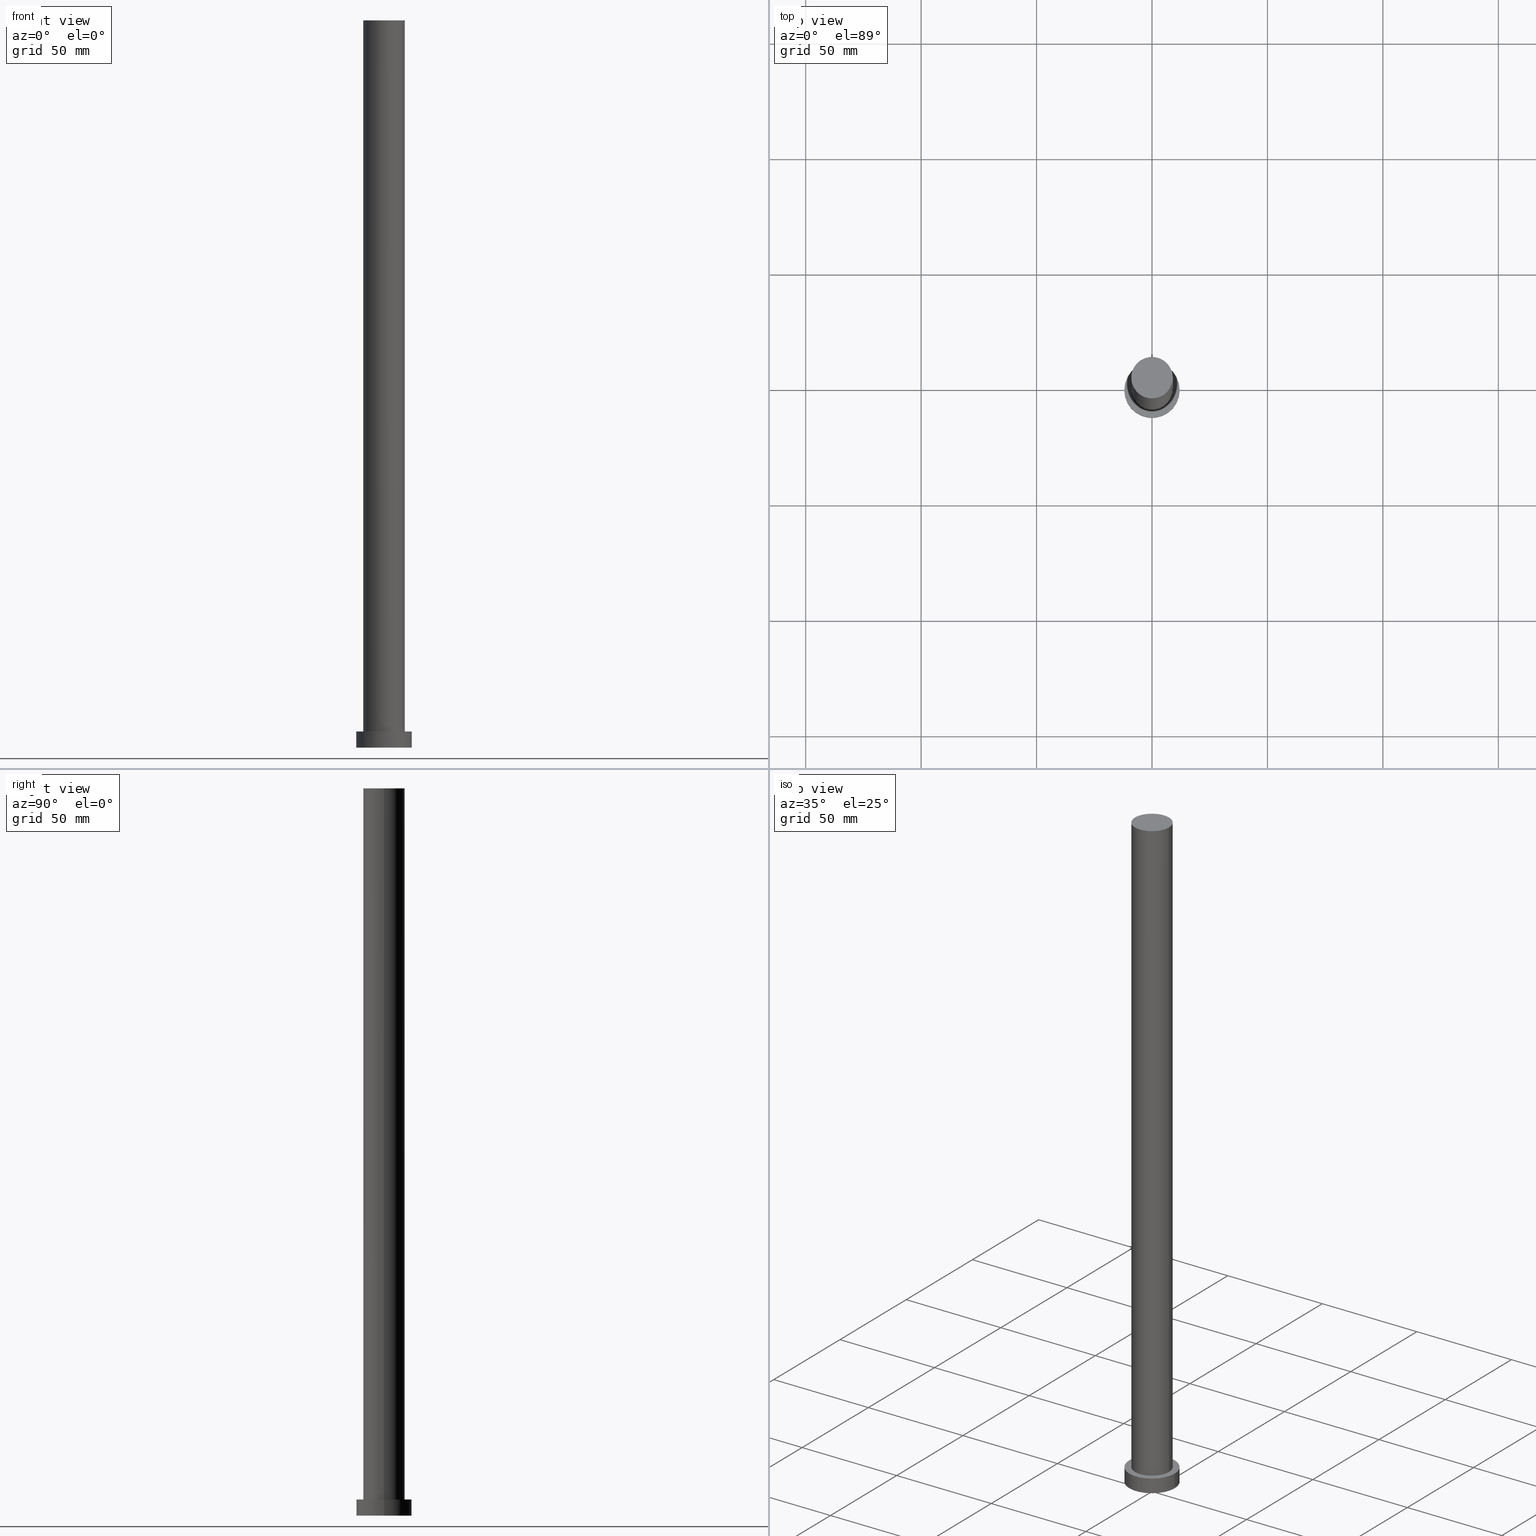
[diagram: canonical four-view strip — front | top / right | iso, engineering-drawing reading convention]
A machine part, canonical four-view strip (front | top / right | iso — engineering-drawing reading convention). The complete STEP part file that produces these views, byte-faithful:
ISO-10303-21;
HEADER;
FILE_DESCRIPTION (( 'STEP AP203' ),
    '1' );
FILE_NAME ('3bd4.STEP',
    '2023-02-13T08:45:31',
    ( '' ),
    ( '' ),
    'SwSTEP 2.0',
    'SolidWorks 2019',
    '' );
FILE_SCHEMA (( 'CONFIG_CONTROL_DESIGN' ));
ENDSEC;

DATA;
#1 = CIRCLE ( 'NONE', #144, 12.00000000000000178 ) ;
#2 = ADVANCED_FACE ( 'NONE', ( #172, #74 ), #202, .T. ) ;
#3 = ORIENTED_EDGE ( 'NONE', *, *, #13, .T. ) ;
#4 = APPROVAL ( #254, 'NEUR�EN�' ) ;
#5 = CARTESIAN_POINT ( 'NONE',  ( -9.000000000000001776, 0.000000000000000000, 315.0000000000000000 ) ) ;
#6 = LINE ( 'NONE', #171, #160 ) ;
#7 = CC_DESIGN_DATE_AND_TIME_ASSIGNMENT ( #100, #83, ( #166 ) ) ;
#8 = VERTEX_POINT ( 'NONE', #111 ) ;
#9 = ORIENTED_EDGE ( 'NONE', *, *, #13, .F. ) ;
#10 = AXIS2_PLACEMENT_3D ( 'NONE', #110, #34, #114 ) ;
#11 = CARTESIAN_POINT ( 'NONE',  ( 9.000000000000001776, 1.102182119232617911E-15, 7.000000000000000000 ) ) ;
#12 = CARTESIAN_POINT ( 'NONE',  ( -9.000000000000001776, 0.000000000000000000, 7.000000000000000000 ) ) ;
#13 = EDGE_CURVE ( 'NONE', #76, #87, #17, .T. ) ;
#14 = CALENDAR_DATE ( 2023, 13, 2 ) ;
#15 = DIRECTION ( 'NONE',  ( 0.000000000000000000, 0.000000000000000000, 1.000000000000000000 ) ) ;
#16 = CALENDAR_DATE ( 2023, 13, 2 ) ;
#17 = CIRCLE ( 'NONE', #79, 12.00000000000000178 ) ;
#18 = CARTESIAN_POINT ( 'NONE',  ( 0.000000000000000000, 0.000000000000000000, 0.000000000000000000 ) ) ;
#19 = DIRECTION ( 'NONE',  ( -0.000000000000000000, -0.000000000000000000, -1.000000000000000000 ) ) ;
#20 = CC_DESIGN_APPROVAL ( #4, ( #239 ) ) ;
#21 = COORDINATED_UNIVERSAL_TIME_OFFSET ( 1, 0, .AHEAD. ) ;
#22 = EDGE_LOOP ( 'NONE', ( #128, #9 ) ) ;
#23 = EDGE_CURVE ( 'NONE', #53, #240, #164, .T. ) ;
#24 = AXIS2_PLACEMENT_3D ( 'NONE', #39, #19, #208 ) ;
#25 = ORIENTED_EDGE ( 'NONE', *, *, #68, .T. ) ;
#26 = EDGE_LOOP ( 'NONE', ( #126, #75 ) ) ;
#27 = EDGE_CURVE ( 'NONE', #240, #53, #54, .T. ) ;
#28 = APPROVAL_PERSON_ORGANIZATION ( #154, #124, #137 ) ;
#29 = PLANE ( 'NONE',  #133 ) ;
#30 = DIRECTION ( 'NONE',  ( 0.000000000000000000, 0.000000000000000000, 1.000000000000000000 ) ) ;
#31 = EDGE_CURVE ( 'NONE', #240, #73, #184, .T. ) ;
#32 = EDGE_LOOP ( 'NONE', ( #185, #91 ) ) ;
#33 = UNCERTAINTY_MEASURE_WITH_UNIT (LENGTH_MEASURE( 1.000000000000000082E-05 ), #38, 'distance_accuracy_value', 'NONE');
#34 = DIRECTION ( 'NONE',  ( 0.000000000000000000, 0.000000000000000000, 1.000000000000000000 ) ) ;
#35 = CARTESIAN_POINT ( 'NONE',  ( 0.000000000000000000, 0.000000000000000000, 315.0000000000000000 ) ) ;
#36 = CYLINDRICAL_SURFACE ( 'NONE', #246, 12.00000000000000178 ) ;
#37 = EDGE_CURVE ( 'NONE', #87, #76, #213, .T. ) ;
#38 =( LENGTH_UNIT ( ) NAMED_UNIT ( * ) SI_UNIT ( .MILLI., .METRE. ) );
#39 = CARTESIAN_POINT ( 'NONE',  ( 0.000000000000000000, 0.000000000000000000, 315.0000000000000000 ) ) ;
#40 = PERSON_AND_ORGANIZATION ( #67, #45 ) ;
#41 = EDGE_CURVE ( 'NONE', #53, #251, #6, .T. ) ;
#42 = DIRECTION ( 'NONE',  ( -0.000000000000000000, -0.000000000000000000, -1.000000000000000000 ) ) ;
#43 = CARTESIAN_POINT ( 'NONE',  ( 0.000000000000000000, 0.000000000000000000, 315.0000000000000000 ) ) ;
#44 = APPROVAL ( #59, 'NEUR�EN�' ) ;
#45 = ORGANIZATION ( 'NEUR�EN�', 'NEUR�EN�', '' ) ;
#46 = SHAPE_DEFINITION_REPRESENTATION ( #199, #206 ) ;
#47 = CARTESIAN_POINT ( 'NONE',  ( -12.00000000000000178, 0.000000000000000000, 0.000000000000000000 ) ) ;
#48 = APPLICATION_CONTEXT ( 'configuration controlled 3d designs of mechanical parts and assemblies' ) ;
#49 = APPROVAL_PERSON_ORGANIZATION ( #77, #44, #118 ) ;
#50 = DIRECTION ( 'NONE',  ( 1.000000000000000000, 0.000000000000000000, -0.000000000000000000 ) ) ;
#51 = ADVANCED_FACE ( 'NONE', ( #186 ), #29, .T. ) ;
#52 = DESIGN_CONTEXT ( 'detailed design', #48, 'design' ) ;
#53 = VERTEX_POINT ( 'NONE', #5 ) ;
#54 = CIRCLE ( 'NONE', #192, 9.000000000000001776 ) ;
#55 = DIRECTION ( 'NONE',  ( 1.000000000000000000, 0.000000000000000000, 0.000000000000000000 ) ) ;
#56 = CC_DESIGN_APPROVAL ( #124, ( #109 ) ) ;
#57 = ORIENTED_EDGE ( 'NONE', *, *, #147, .T. ) ;
#58 = CC_DESIGN_DATE_AND_TIME_ASSIGNMENT ( #232, #106, ( #109 ) ) ;
#59 = APPROVAL_STATUS ( 'not_yet_approved' ) ;
#60 = DIRECTION ( 'NONE',  ( 0.000000000000000000, 0.000000000000000000, 1.000000000000000000 ) ) ;
#61 = AXIS2_PLACEMENT_3D ( 'NONE', #194, #60, #132 ) ;
#62 = LINE ( 'NONE', #134, #234 ) ;
#63 = COORDINATED_UNIVERSAL_TIME_OFFSET ( 1, 0, .AHEAD. ) ;
#64 = CARTESIAN_POINT ( 'NONE',  ( 0.000000000000000000, 0.000000000000000000, 7.000000000000000000 ) ) ;
#65 = PLANE ( 'NONE',  #70 ) ;
#66 = CALENDAR_DATE ( 2023, 13, 2 ) ;
#67 = PERSON ( 'NEUR�EN�', 'NEUR�EN�', 'NEUR�EN�', ('NEUR�EN�'), ('NEUR�EN�'), ('NEUR�EN�') ) ;
#68 = EDGE_CURVE ( 'NONE', #8, #76, #222, .T. ) ;
#69 = APPROVAL_DATE_TIME ( #89, #44 ) ;
#70 = AXIS2_PLACEMENT_3D ( 'NONE', #18, #15, #255 ) ;
#71 = EDGE_LOOP ( 'NONE', ( #203, #86 ) ) ;
#72 =( GEOMETRIC_REPRESENTATION_CONTEXT ( 3 ) GLOBAL_UNCERTAINTY_ASSIGNED_CONTEXT ( ( #33 ) ) GLOBAL_UNIT_ASSIGNED_CONTEXT ( ( #38, #116, #229 ) ) REPRESENTATION_CONTEXT ( 'NONE', 'WORKASPACE' ) );
#73 = VERTEX_POINT ( 'NONE', #11 ) ;
#74 = FACE_OUTER_BOUND ( 'NONE', #71, .T. ) ;
#75 = ORIENTED_EDGE ( 'NONE', *, *, #157, .F. ) ;
#76 = VERTEX_POINT ( 'NONE', #98 ) ;
#77 = PERSON_AND_ORGANIZATION ( #67, #45 ) ;
#78 = DIRECTION ( 'NONE',  ( -1.000000000000000000, 0.000000000000000000, 0.000000000000000000 ) ) ;
#79 = AXIS2_PLACEMENT_3D ( 'NONE', #245, #226, #97 ) ;
#80 = CARTESIAN_POINT ( 'NONE',  ( 0.000000000000000000, 0.000000000000000000, 7.000000000000000000 ) ) ;
#81 = CARTESIAN_POINT ( 'NONE',  ( 0.000000000000000000, 0.000000000000000000, 0.000000000000000000 ) ) ;
#82 = DIRECTION ( 'NONE',  ( -1.000000000000000000, 0.000000000000000000, 0.000000000000000000 ) ) ;
#83 = DATE_TIME_ROLE ( 'classification_date' ) ;
#84 = APPLICATION_PROTOCOL_DEFINITION ( 'international standard', 'config_control_design', 1994, #48 ) ;
#85 = LOCAL_TIME ( 9, 45, 31.00000000000000000, #63 ) ;
#86 = ORIENTED_EDGE ( 'NONE', *, *, #167, .T. ) ;
#87 = VERTEX_POINT ( 'NONE', #47 ) ;
#88 = VECTOR ( 'NONE', #204, 1000.000000000000000 ) ;
#89 = DATE_AND_TIME ( #14, #227 ) ;
#90 = LOCAL_TIME ( 9, 45, 31.00000000000000000, #102 ) ;
#91 = ORIENTED_EDGE ( 'NONE', *, *, #27, .T. ) ;
#92 = EDGE_CURVE ( 'NONE', #94, #8, #1, .T. ) ;
#93 = ORIENTED_EDGE ( 'NONE', *, *, #197, .T. ) ;
#94 = VERTEX_POINT ( 'NONE', #138 ) ;
#95 = AXIS2_PLACEMENT_3D ( 'NONE', #150, #140, #188 ) ;
#96 = ORIENTED_EDGE ( 'NONE', *, *, #157, .T. ) ;
#97 = DIRECTION ( 'NONE',  ( 1.000000000000000000, 0.000000000000000000, 0.000000000000000000 ) ) ;
#98 = CARTESIAN_POINT ( 'NONE',  ( 12.00000000000000178, 1.469576158976824144E-15, 0.000000000000000000 ) ) ;
#99 = DIRECTION ( 'NONE',  ( 0.000000000000000000, 0.000000000000000000, 1.000000000000000000 ) ) ;
#100 = DATE_AND_TIME ( #195, #90 ) ;
#101 = APPLICATION_PROTOCOL_DEFINITION ( 'international standard', 'config_control_design', 1994, #165 ) ;
#102 = COORDINATED_UNIVERSAL_TIME_OFFSET ( 1, 0, .AHEAD. ) ;
#103 = DIRECTION ( 'NONE',  ( 0.000000000000000000, 0.000000000000000000, 1.000000000000000000 ) ) ;
#104 = CARTESIAN_POINT ( 'NONE',  ( 0.000000000000000000, 0.000000000000000000, 7.000000000000000000 ) ) ;
#105 = ADVANCED_FACE ( 'NONE', ( #212 ), #65, .F. ) ;
#106 = DATE_TIME_ROLE ( 'creation_date' ) ;
#107 = CIRCLE ( 'NONE', #244, 9.000000000000001776 ) ;
#108 = ORIENTED_EDGE ( 'NONE', *, *, #68, .F. ) ;
#109 = PRODUCT_DEFINITION ( 'NEZN�M�', '', #239, #52 ) ;
#110 = CARTESIAN_POINT ( 'NONE',  ( 0.000000000000000000, 0.000000000000000000, 0.000000000000000000 ) ) ;
#111 = CARTESIAN_POINT ( 'NONE',  ( 12.00000000000000178, 1.469576158976824144E-15, 7.000000000000000000 ) ) ;
#112 = ORIENTED_EDGE ( 'NONE', *, *, #31, .F. ) ;
#113 = PRODUCT_RELATED_PRODUCT_CATEGORY ( 'detail', '', ( #242 ) ) ;
#114 = DIRECTION ( 'NONE',  ( 1.000000000000000000, 0.000000000000000000, 0.000000000000000000 ) ) ;
#115 = EDGE_LOOP ( 'NONE', ( #108, #225, #93, #163 ) ) ;
#116 =( NAMED_UNIT ( * ) PLANE_ANGLE_UNIT ( ) SI_UNIT ( $, .RADIAN. ) );
#117 = CC_DESIGN_APPROVAL ( #44, ( #166 ) ) ;
#118 = APPROVAL_ROLE ( '' ) ;
#119 = FACE_OUTER_BOUND ( 'NONE', #146, .T. ) ;
#120 = FACE_OUTER_BOUND ( 'NONE', #115, .T. ) ;
#121 = CC_DESIGN_SECURITY_CLASSIFICATION ( #166, ( #239 ) ) ;
#122 = CALENDAR_DATE ( 2023, 13, 2 ) ;
#123 = CARTESIAN_POINT ( 'NONE',  ( 0.000000000000000000, 0.000000000000000000, 7.000000000000000000 ) ) ;
#124 = APPROVAL ( #207, 'NEUR�EN�' ) ;
#125 = CLOSED_SHELL ( 'NONE', ( #238, #209, #182, #2, #105, #152, #51 ) ) ;
#126 = ORIENTED_EDGE ( 'NONE', *, *, #147, .F. ) ;
#127 = ORIENTED_EDGE ( 'NONE', *, *, #197, .F. ) ;
#128 = ORIENTED_EDGE ( 'NONE', *, *, #37, .F. ) ;
#129 = DIRECTION ( 'NONE',  ( 0.000000000000000000, 0.000000000000000000, 1.000000000000000000 ) ) ;
#130 = APPROVAL_PERSON_ORGANIZATION ( #190, #4, #155 ) ;
#131 = ORIENTED_EDGE ( 'NONE', *, *, #41, .F. ) ;
#132 = DIRECTION ( 'NONE',  ( 1.000000000000000000, 0.000000000000000000, 0.000000000000000000 ) ) ;
#133 = AXIS2_PLACEMENT_3D ( 'NONE', #35, #173, #249 ) ;
#134 = CARTESIAN_POINT ( 'NONE',  ( -12.00000000000000178, 0.000000000000000000, 7.000000000000000000 ) ) ;
#135 = SECURITY_CLASSIFICATION_LEVEL ( 'unclassified' ) ;
#136 = DIRECTION ( 'NONE',  ( -0.000000000000000000, -0.000000000000000000, -1.000000000000000000 ) ) ;
#137 = APPROVAL_ROLE ( '' ) ;
#138 = CARTESIAN_POINT ( 'NONE',  ( -12.00000000000000178, 0.000000000000000000, 7.000000000000000000 ) ) ;
#139 = APPROVAL_DATE_TIME ( #158, #4 ) ;
#140 = DIRECTION ( 'NONE',  ( 0.000000000000000000, 0.000000000000000000, 1.000000000000000000 ) ) ;
#141 = APPROVAL_DATE_TIME ( #178, #124 ) ;
#142 = PERSON_AND_ORGANIZATION ( #67, #45 ) ;
#143 = CC_DESIGN_PERSON_AND_ORGANIZATION_ASSIGNMENT ( #196, #210, ( #109 ) ) ;
#144 = AXIS2_PLACEMENT_3D ( 'NONE', #64, #103, #233 ) ;
#145 = DIRECTION ( 'NONE',  ( 1.000000000000000000, 0.000000000000000000, 0.000000000000000000 ) ) ;
#146 = EDGE_LOOP ( 'NONE', ( #168, #243, #96, #131 ) ) ;
#147 = EDGE_CURVE ( 'NONE', #251, #73, #107, .T. ) ;
#148 = DIRECTION ( 'NONE',  ( 0.000000000000000000, 0.000000000000000000, 1.000000000000000000 ) ) ;
#149 = CARTESIAN_POINT ( 'NONE',  ( 9.000000000000001776, 1.102182119232617911E-15, 315.0000000000000000 ) ) ;
#150 = CARTESIAN_POINT ( 'NONE',  ( 0.000000000000000000, 0.000000000000000000, 7.000000000000000000 ) ) ;
#151 = PERSON_AND_ORGANIZATION_ROLE ( 'design_supplier' ) ;
#152 = ADVANCED_FACE ( 'NONE', ( #153 ), #231, .T. ) ;
#153 = FACE_OUTER_BOUND ( 'NONE', #169, .T. ) ;
#154 = PERSON_AND_ORGANIZATION ( #67, #45 ) ;
#155 = APPROVAL_ROLE ( '' ) ;
#156 = DIRECTION ( 'NONE',  ( 0.000000000000000000, 0.000000000000000000, 1.000000000000000000 ) ) ;
#157 = EDGE_CURVE ( 'NONE', #73, #251, #198, .T. ) ;
#158 = DATE_AND_TIME ( #16, #223 ) ;
#159 = DIRECTION ( 'NONE',  ( -0.000000000000000000, -0.000000000000000000, -1.000000000000000000 ) ) ;
#160 = VECTOR ( 'NONE', #247, 1000.000000000000000 ) ;
#161 = MECHANICAL_CONTEXT ( 'NONE', #165, 'mechanical' ) ;
#162 = CC_DESIGN_PERSON_AND_ORGANIZATION_ASSIGNMENT ( #230, #211, ( #239 ) ) ;
#163 = ORIENTED_EDGE ( 'NONE', *, *, #37, .T. ) ;
#164 = CIRCLE ( 'NONE', #218, 9.000000000000001776 ) ;
#165 = APPLICATION_CONTEXT ( 'configuration controlled 3d designs of mechanical parts and assemblies' ) ;
#166 = SECURITY_CLASSIFICATION ( '', '', #135 ) ;
#167 = EDGE_CURVE ( 'NONE', #8, #94, #170, .T. ) ;
#168 = ORIENTED_EDGE ( 'NONE', *, *, #27, .F. ) ;
#169 = EDGE_LOOP ( 'NONE', ( #112, #220, #174, #57 ) ) ;
#170 = CIRCLE ( 'NONE', #95, 12.00000000000000178 ) ;
#171 = CARTESIAN_POINT ( 'NONE',  ( -9.000000000000001776, 0.000000000000000000, 315.0000000000000000 ) ) ;
#172 = FACE_BOUND ( 'NONE', #26, .T. ) ;
#173 = DIRECTION ( 'NONE',  ( 0.000000000000000000, 0.000000000000000000, 1.000000000000000000 ) ) ;
#174 = ORIENTED_EDGE ( 'NONE', *, *, #41, .T. ) ;
#175 = CYLINDRICAL_SURFACE ( 'NONE', #219, 9.000000000000001776 ) ;
#176 = DIRECTION ( 'NONE',  ( -0.000000000000000000, -0.000000000000000000, -1.000000000000000000 ) ) ;
#177 = CYLINDRICAL_SURFACE ( 'NONE', #241, 12.00000000000000178 ) ;
#178 = DATE_AND_TIME ( #66, #85 ) ;
#179 = CARTESIAN_POINT ( 'NONE',  ( 9.000000000000001776, 1.102182119232617911E-15, 315.0000000000000000 ) ) ;
#180 = MANIFOLD_SOLID_BREP ( 'P�idat vysunut�m3', #125 ) ;
#181 = CARTESIAN_POINT ( 'NONE',  ( 0.000000000000000000, 0.000000000000000000, 315.0000000000000000 ) ) ;
#182 = ADVANCED_FACE ( 'NONE', ( #120 ), #177, .T. ) ;
#183 = AXIS2_PLACEMENT_3D ( 'NONE', #200, #148, #50 ) ;
#184 = LINE ( 'NONE', #149, #88 ) ;
#185 = ORIENTED_EDGE ( 'NONE', *, *, #23, .T. ) ;
#186 = FACE_OUTER_BOUND ( 'NONE', #32, .T. ) ;
#187 = CARTESIAN_POINT ( 'NONE',  ( 0.000000000000000000, 0.000000000000000000, 315.0000000000000000 ) ) ;
#188 = DIRECTION ( 'NONE',  ( 1.000000000000000000, 0.000000000000000000, 0.000000000000000000 ) ) ;
#189 = COORDINATED_UNIVERSAL_TIME_OFFSET ( 1, 0, .AHEAD. ) ;
#190 = PERSON_AND_ORGANIZATION ( #67, #45 ) ;
#191 = CC_DESIGN_PERSON_AND_ORGANIZATION_ASSIGNMENT ( #142, #216, ( #242 ) ) ;
#192 = AXIS2_PLACEMENT_3D ( 'NONE', #187, #129, #145 ) ;
#193 = PERSON_AND_ORGANIZATION ( #67, #45 ) ;
#194 = CARTESIAN_POINT ( 'NONE',  ( 0.000000000000000000, 0.000000000000000000, 7.000000000000000000 ) ) ;
#195 = CALENDAR_DATE ( 2023, 13, 2 ) ;
#196 = PERSON_AND_ORGANIZATION ( #67, #45 ) ;
#197 = EDGE_CURVE ( 'NONE', #94, #87, #62, .T. ) ;
#198 = CIRCLE ( 'NONE', #61, 9.000000000000001776 ) ;
#199 = PRODUCT_DEFINITION_SHAPE ( 'NONE', 'NONE',  #109 ) ;
#200 = CARTESIAN_POINT ( 'NONE',  ( 0.000000000000000000, 0.000000000000000000, 7.000000000000000000 ) ) ;
#201 = CC_DESIGN_PERSON_AND_ORGANIZATION_ASSIGNMENT ( #40, #151, ( #239 ) ) ;
#202 = PLANE ( 'NONE',  #183 ) ;
#203 = ORIENTED_EDGE ( 'NONE', *, *, #92, .T. ) ;
#204 = DIRECTION ( 'NONE',  ( -0.000000000000000000, -0.000000000000000000, -1.000000000000000000 ) ) ;
#205 = DIRECTION ( 'NONE',  ( -0.000000000000000000, -0.000000000000000000, -1.000000000000000000 ) ) ;
#206 = ADVANCED_BREP_SHAPE_REPRESENTATION ( '3bd4', ( #180, #250 ), #72 ) ;
#207 = APPROVAL_STATUS ( 'not_yet_approved' ) ;
#208 = DIRECTION ( 'NONE',  ( -1.000000000000000000, 0.000000000000000000, 0.000000000000000000 ) ) ;
#209 = ADVANCED_FACE ( 'NONE', ( #236 ), #36, .T. ) ;
#210 = PERSON_AND_ORGANIZATION_ROLE ( 'creator' ) ;
#211 = PERSON_AND_ORGANIZATION_ROLE ( 'creator' ) ;
#212 = FACE_OUTER_BOUND ( 'NONE', #22, .T. ) ;
#213 = CIRCLE ( 'NONE', #10, 12.00000000000000178 ) ;
#214 = DIRECTION ( 'NONE',  ( -1.000000000000000000, 0.000000000000000000, 0.000000000000000000 ) ) ;
#215 = LOCAL_TIME ( 9, 45, 31.00000000000000000, #21 ) ;
#216 = PERSON_AND_ORGANIZATION_ROLE ( 'design_owner' ) ;
#217 = CC_DESIGN_PERSON_AND_ORGANIZATION_ASSIGNMENT ( #193, #252, ( #166 ) ) ;
#218 = AXIS2_PLACEMENT_3D ( 'NONE', #181, #30, #55 ) ;
#219 = AXIS2_PLACEMENT_3D ( 'NONE', #43, #176, #78 ) ;
#220 = ORIENTED_EDGE ( 'NONE', *, *, #23, .F. ) ;
#221 = VECTOR ( 'NONE', #205, 1000.000000000000000 ) ;
#222 = LINE ( 'NONE', #228, #221 ) ;
#223 = LOCAL_TIME ( 9, 45, 31.00000000000000000, #237 ) ;
#224 = ORIENTED_EDGE ( 'NONE', *, *, #167, .F. ) ;
#225 = ORIENTED_EDGE ( 'NONE', *, *, #92, .F. ) ;
#226 = DIRECTION ( 'NONE',  ( 0.000000000000000000, 0.000000000000000000, 1.000000000000000000 ) ) ;
#227 = LOCAL_TIME ( 9, 45, 31.00000000000000000, #189 ) ;
#228 = CARTESIAN_POINT ( 'NONE',  ( 12.00000000000000178, 1.469576158976824144E-15, 7.000000000000000000 ) ) ;
#229 =( NAMED_UNIT ( * ) SI_UNIT ( $, .STERADIAN. ) SOLID_ANGLE_UNIT ( ) );
#230 = PERSON_AND_ORGANIZATION ( #67, #45 ) ;
#231 = CYLINDRICAL_SURFACE ( 'NONE', #24, 9.000000000000001776 ) ;
#232 = DATE_AND_TIME ( #122, #215 ) ;
#233 = DIRECTION ( 'NONE',  ( 1.000000000000000000, 0.000000000000000000, 0.000000000000000000 ) ) ;
#234 = VECTOR ( 'NONE', #159, 1000.000000000000000 ) ;
#235 = DIRECTION ( 'NONE',  ( 1.000000000000000000, 0.000000000000000000, 0.000000000000000000 ) ) ;
#236 = FACE_OUTER_BOUND ( 'NONE', #248, .T. ) ;
#237 = COORDINATED_UNIVERSAL_TIME_OFFSET ( 1, 0, .AHEAD. ) ;
#238 = ADVANCED_FACE ( 'NONE', ( #119 ), #175, .T. ) ;
#239 = PRODUCT_DEFINITION_FORMATION_WITH_SPECIFIED_SOURCE ( 'LIBOVOLN�', '', #242, .NOT_KNOWN. ) ;
#240 = VERTEX_POINT ( 'NONE', #179 ) ;
#241 = AXIS2_PLACEMENT_3D ( 'NONE', #123, #42, #82 ) ;
#242 = PRODUCT ( '3bd4', '3bd4', '', ( #161 ) ) ;
#243 = ORIENTED_EDGE ( 'NONE', *, *, #31, .T. ) ;
#244 = AXIS2_PLACEMENT_3D ( 'NONE', #104, #99, #253 ) ;
#245 = CARTESIAN_POINT ( 'NONE',  ( 0.000000000000000000, 0.000000000000000000, 0.000000000000000000 ) ) ;
#246 = AXIS2_PLACEMENT_3D ( 'NONE', #80, #136, #214 ) ;
#247 = DIRECTION ( 'NONE',  ( -0.000000000000000000, -0.000000000000000000, -1.000000000000000000 ) ) ;
#248 = EDGE_LOOP ( 'NONE', ( #224, #25, #3, #127 ) ) ;
#249 = DIRECTION ( 'NONE',  ( 1.000000000000000000, 0.000000000000000000, -0.000000000000000000 ) ) ;
#250 = AXIS2_PLACEMENT_3D ( 'NONE', #81, #156, #235 ) ;
#251 = VERTEX_POINT ( 'NONE', #12 ) ;
#252 = PERSON_AND_ORGANIZATION_ROLE ( 'classification_officer' ) ;
#253 = DIRECTION ( 'NONE',  ( 1.000000000000000000, 0.000000000000000000, 0.000000000000000000 ) ) ;
#254 = APPROVAL_STATUS ( 'not_yet_approved' ) ;
#255 = DIRECTION ( 'NONE',  ( 1.000000000000000000, 0.000000000000000000, -0.000000000000000000 ) ) ;
ENDSEC;
END-ISO-10303-21;
